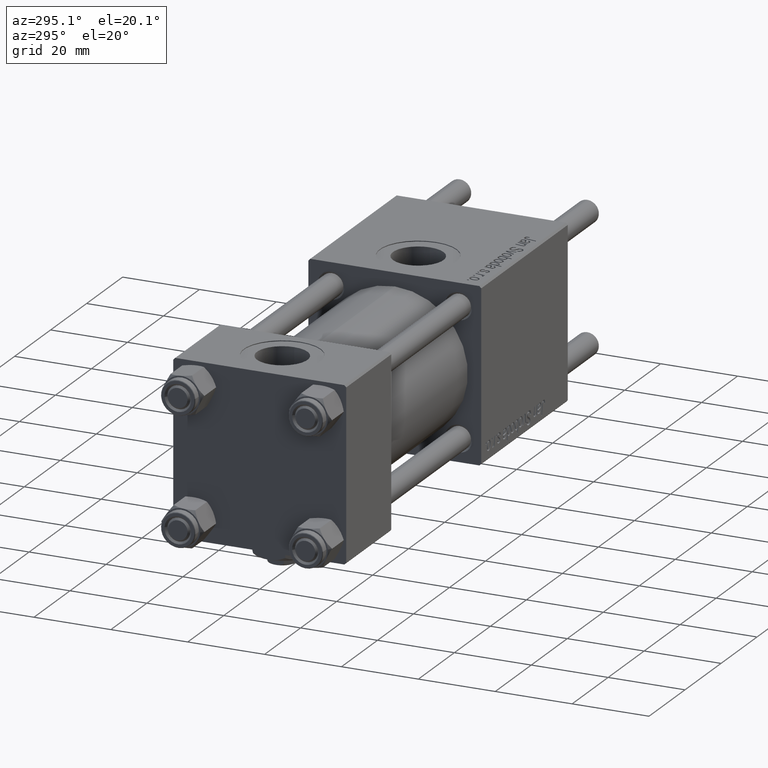
[diagram: clean part render]
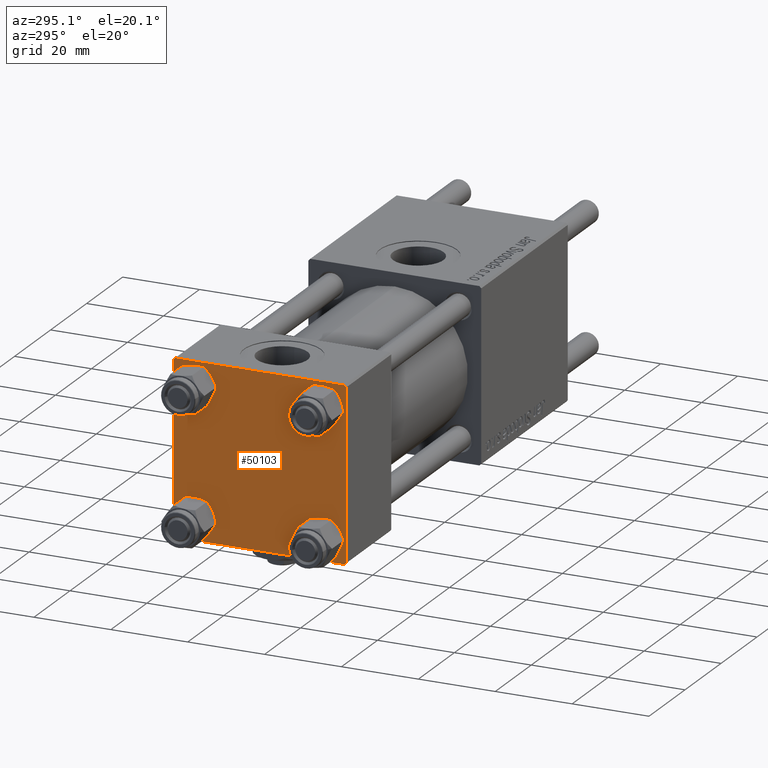
[diagram: same view with one face highlighted and labeled with its STEP entity id]
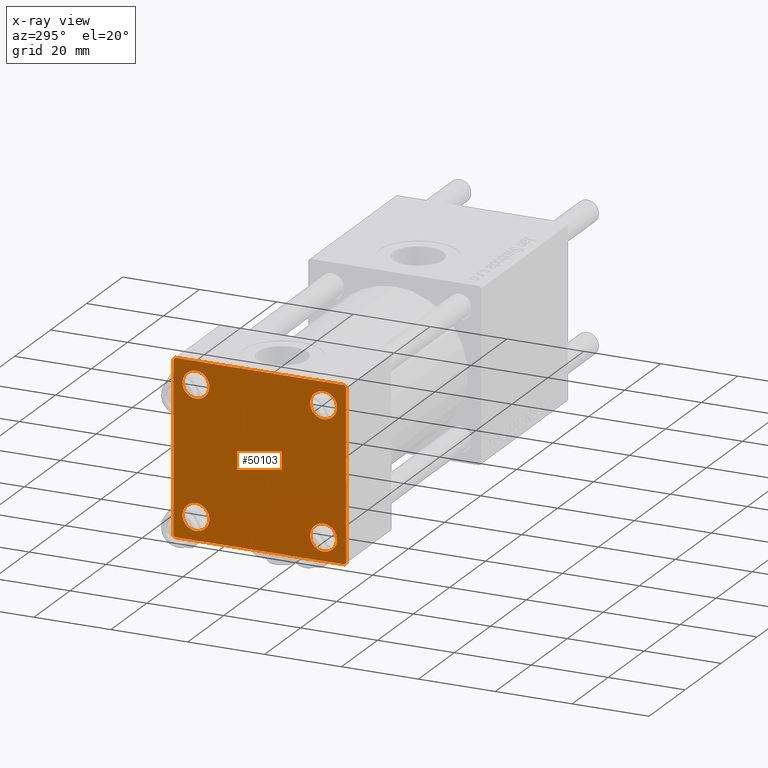
[diagram: x-ray of the same camera — body ghosted, the highlighted face saturated]
A machine part, auxiliary view. The second image highlights one B-rep face of the part: STEP entity #50103.
The next image is the same camera in x-ray: the body ghosted, the highlighted face saturated — about 0% of this face is hidden behind the body in this view.
In plain terms, the highlighted planar face has unit normal (-1, 0, 0).
Its self-contained STEP definition (entity closure, byte-faithful):
#171 = CARTESIAN_POINT ( 'NONE',  ( 0.000000000000000000, 16.59999999999999787, 16.60000000000000497 ) ) ;
#240 = EDGE_CURVE ( 'NONE', #49391, #10464, #55686, .T. ) ;
#549 = DIRECTION ( 'NONE',  ( 1.000000000000000000, -0.000000000000000000, 0.000000000000000000 ) ) ;
#808 = DIRECTION ( 'NONE',  ( 0.000000000000000000, 0.000000000000000000, 1.000000000000000000 ) ) ;
#1203 = FACE_BOUND ( 'NONE', #16793, .T. ) ;
#1598 = DIRECTION ( 'NONE',  ( 0.000000000000000000, -0.7071067811865426878, 0.7071067811865524577 ) ) ;
#2044 = CARTESIAN_POINT ( 'NONE',  ( 0.000000000000000000, 22.50000000000000000, -22.49999999999999645 ) ) ;
#2455 = AXIS2_PLACEMENT_3D ( 'NONE', #58542, #54114, #808 ) ;
#3233 = ORIENTED_EDGE ( 'NONE', *, *, #10492, .T. ) ;
#4667 = EDGE_CURVE ( 'NONE', #33914, #56855, #36293, .T. ) ;
#5054 = VECTOR ( 'NONE', #22146, 1000.000000000000000 ) ;
#5116 = DIRECTION ( 'NONE',  ( 1.000000000000000000, -0.000000000000000000, 0.000000000000000000 ) ) ;
#5233 = VERTEX_POINT ( 'NONE', #48022 ) ;
#5362 = FACE_BOUND ( 'NONE', #29068, .T. ) ;
#6223 = PLANE ( 'NONE',  #53026 ) ;
#6280 = LINE ( 'NONE', #33767, #18502 ) ;
#6327 = EDGE_CURVE ( 'NONE', #54380, #55813, #52940, .T. ) ;
#6615 = CARTESIAN_POINT ( 'NONE',  ( 0.000000000000000000, 16.59999999999999787, 20.10000000000000142 ) ) ;
#7002 = ORIENTED_EDGE ( 'NONE', *, *, #25706, .T. ) ;
#7615 = VECTOR ( 'NONE', #32886, 999.9999999999998863 ) ;
#8708 = CARTESIAN_POINT ( 'NONE',  ( 0.000000000000000000, 22.25000000000014566, -22.24999999999984013 ) ) ;
#8879 = VERTEX_POINT ( 'NONE', #37182 ) ;
#9121 = CARTESIAN_POINT ( 'NONE',  ( 0.000000000000000000, 22.50000000000000000, 22.50000000000000355 ) ) ;
#9818 = FACE_OUTER_BOUND ( 'NONE', #26844, .T. ) ;
#10056 = EDGE_CURVE ( 'NONE', #31711, #54151, #28747, .T. ) ;
#10217 = DIRECTION ( 'NONE',  ( 0.000000000000000000, 0.000000000000000000, 1.000000000000000000 ) ) ;
#10329 = CARTESIAN_POINT ( 'NONE',  ( 0.000000000000000000, -16.59999999999999076, -16.60000000000000853 ) ) ;
#10464 = VERTEX_POINT ( 'NONE', #11790 ) ;
#10492 = EDGE_CURVE ( 'NONE', #56855, #12654, #38704, .T. ) ;
#10502 = CARTESIAN_POINT ( 'NONE',  ( 0.000000000000000000, -16.59999999999999076, 16.60000000000000853 ) ) ;
#10591 = ORIENTED_EDGE ( 'NONE', *, *, #43206, .T. ) ;
#10602 = CARTESIAN_POINT ( 'NONE',  ( 0.000000000000000000, -16.59999999999999076, 13.10000000000001030 ) ) ;
#11014 = CARTESIAN_POINT ( 'NONE',  ( 0.000000000000000000, -16.59999999999999076, 20.10000000000000853 ) ) ;
#11790 = CARTESIAN_POINT ( 'NONE',  ( 0.000000000000000000, -16.59999999999999076, -13.10000000000001030 ) ) ;
#12654 = VERTEX_POINT ( 'NONE', #45727 ) ;
#13414 = CIRCLE ( 'NONE', #22882, 3.499999999999996003 ) ;
#13883 = CARTESIAN_POINT ( 'NONE',  ( 0.000000000000000000, -16.59999999999999076, -16.60000000000000853 ) ) ;
#14381 = DIRECTION ( 'NONE',  ( 1.000000000000000000, -0.000000000000000000, 0.000000000000000000 ) ) ;
#14826 = FACE_BOUND ( 'NONE', #56596, .T. ) ;
#15135 = AXIS2_PLACEMENT_3D ( 'NONE', #171, #14381, #19393 ) ;
#16072 = VECTOR ( 'NONE', #57926, 1000.000000000000114 ) ;
#16247 = CARTESIAN_POINT ( 'NONE',  ( 0.000000000000000000, 22.50000000000000000, 21.99999999999999645 ) ) ;
#16495 = ORIENTED_EDGE ( 'NONE', *, *, #37183, .T. ) ;
#16793 = EDGE_LOOP ( 'NONE', ( #7002, #47350 ) ) ;
#16820 = CARTESIAN_POINT ( 'NONE',  ( 0.000000000000000000, 21.99999999999999289, 22.50000000000000355 ) ) ;
#17615 = AXIS2_PLACEMENT_3D ( 'NONE', #53379, #5116, #44476 ) ;
#18386 = ORIENTED_EDGE ( 'NONE', *, *, #10056, .T. ) ;
#18502 = VECTOR ( 'NONE', #24921, 1000.000000000000000 ) ;
#18771 = EDGE_CURVE ( 'NONE', #33914, #54151, #49948, .T. ) ;
#19293 = VERTEX_POINT ( 'NONE', #6615 ) ;
#19378 = CARTESIAN_POINT ( 'NONE',  ( 0.000000000000000000, -22.25000000000014566, -22.24999999999984013 ) ) ;
#19393 = DIRECTION ( 'NONE',  ( 0.000000000000000000, 0.000000000000000000, 1.000000000000000000 ) ) ;
#20109 = DIRECTION ( 'NONE',  ( 0.000000000000000000, -1.000000000000000000, -2.312964634635742957E-16 ) ) ;
#20958 = CIRCLE ( 'NONE', #42656, 3.499999999999996003 ) ;
#21763 = VECTOR ( 'NONE', #1598, 1000.000000000000000 ) ;
#22146 = DIRECTION ( 'NONE',  ( 0.000000000000000000, -1.000000000000000000, -7.709882115452476934E-17 ) ) ;
#22788 = VECTOR ( 'NONE', #20109, 1000.000000000000000 ) ;
#22882 = AXIS2_PLACEMENT_3D ( 'NONE', #44210, #39773, #27065 ) ;
#23271 = EDGE_CURVE ( 'NONE', #31711, #25058, #6280, .T. ) ;
#23698 = VECTOR ( 'NONE', #29829, 1000.000000000000000 ) ;
#23944 = DIRECTION ( 'NONE',  ( 1.000000000000000000, -0.000000000000000000, 0.000000000000000000 ) ) ;
#24572 = DIRECTION ( 'NONE',  ( -1.000000000000000000, 0.000000000000000000, -0.000000000000000000 ) ) ;
#24921 = DIRECTION ( 'NONE',  ( 0.000000000000000000, 0.000000000000000000, -1.000000000000000000 ) ) ;
#25058 = VERTEX_POINT ( 'NONE', #44168 ) ;
#25159 = CARTESIAN_POINT ( 'NONE',  ( 0.000000000000000000, 16.59999999999999787, 16.60000000000000497 ) ) ;
#25402 = EDGE_CURVE ( 'NONE', #32827, #5233, #56332, .T. ) ;
#25706 = EDGE_CURVE ( 'NONE', #36525, #27616, #34546, .T. ) ;
#25949 = EDGE_CURVE ( 'NONE', #27616, #36525, #43092, .T. ) ;
#26844 = EDGE_LOOP ( 'NONE', ( #3233, #16495, #52380, #56522, #41661, #18386, #45616, #47736 ) ) ;
#26904 = DIRECTION ( 'NONE',  ( 0.000000000000000000, 0.000000000000000000, 1.000000000000000000 ) ) ;
#27065 = DIRECTION ( 'NONE',  ( 0.000000000000000000, 0.000000000000000000, 1.000000000000000000 ) ) ;
#27527 = AXIS2_PLACEMENT_3D ( 'NONE', #13883, #549, #26904 ) ;
#27616 = VERTEX_POINT ( 'NONE', #10602 ) ;
#27863 = CARTESIAN_POINT ( 'NONE',  ( 0.000000000000000000, 0.000000000000000000, 0.000000000000000000 ) ) ;
#28747 = LINE ( 'NONE', #51262, #7615 ) ;
#29068 = EDGE_LOOP ( 'NONE', ( #30133, #45469 ) ) ;
#29829 = DIRECTION ( 'NONE',  ( 0.000000000000000000, 0.000000000000000000, -1.000000000000000000 ) ) ;
#30133 = ORIENTED_EDGE ( 'NONE', *, *, #45062, .T. ) ;
#30407 = ORIENTED_EDGE ( 'NONE', *, *, #46717, .T. ) ;
#31711 = VERTEX_POINT ( 'NONE', #47609 ) ;
#32474 = ORIENTED_EDGE ( 'NONE', *, *, #25402, .T. ) ;
#32827 = VERTEX_POINT ( 'NONE', #44639 ) ;
#32886 = DIRECTION ( 'NONE',  ( -0.000000000000000000, 0.7071067811865525687, 0.7071067811865425767 ) ) ;
#33253 = LINE ( 'NONE', #19378, #21763 ) ;
#33767 = CARTESIAN_POINT ( 'NONE',  ( 0.000000000000000000, -22.50000000000000000, 22.50000000000000000 ) ) ;
#33914 = VERTEX_POINT ( 'NONE', #16820 ) ;
#34546 = CIRCLE ( 'NONE', #54459, 3.499999999999996003 ) ;
#34795 = VECTOR ( 'NONE', #50426, 1000.000000000000000 ) ;
#36074 = CARTESIAN_POINT ( 'NONE',  ( 0.000000000000000000, -21.99999999999997868, 22.50000000000000000 ) ) ;
#36293 = LINE ( 'NONE', #48446, #16072 ) ;
#36525 = VERTEX_POINT ( 'NONE', #11014 ) ;
#37182 = CARTESIAN_POINT ( 'NONE',  ( 0.000000000000000000, 16.59999999999999787, 13.10000000000000675 ) ) ;
#37183 = EDGE_CURVE ( 'NONE', #12654, #54380, #44790, .T. ) ;
#37298 = FACE_BOUND ( 'NONE', #49150, .T. ) ;
#37692 = AXIS2_PLACEMENT_3D ( 'NONE', #10329, #23944, #50593 ) ;
#38704 = LINE ( 'NONE', #56783, #23698 ) ;
#39773 = DIRECTION ( 'NONE',  ( 1.000000000000000000, -0.000000000000000000, 0.000000000000000000 ) ) ;
#40641 = CIRCLE ( 'NONE', #15135, 3.499999999999996003 ) ;
#41013 = ORIENTED_EDGE ( 'NONE', *, *, #46215, .T. ) ;
#41661 = ORIENTED_EDGE ( 'NONE', *, *, #23271, .F. ) ;
#42289 = EDGE_CURVE ( 'NONE', #55813, #25058, #33253, .T. ) ;
#42656 = AXIS2_PLACEMENT_3D ( 'NONE', #25159, #48520, #43780 ) ;
#43092 = CIRCLE ( 'NONE', #17615, 3.499999999999996003 ) ;
#43206 = EDGE_CURVE ( 'NONE', #19293, #8879, #40641, .T. ) ;
#43780 = DIRECTION ( 'NONE',  ( 0.000000000000000000, 0.000000000000000000, 1.000000000000000000 ) ) ;
#44168 = CARTESIAN_POINT ( 'NONE',  ( 0.000000000000000000, -22.50000000000000000, -21.99999999999997158 ) ) ;
#44210 = CARTESIAN_POINT ( 'NONE',  ( 0.000000000000000000, 16.59999999999999787, -16.60000000000000497 ) ) ;
#44476 = DIRECTION ( 'NONE',  ( 0.000000000000000000, 0.000000000000000000, 1.000000000000000000 ) ) ;
#44639 = CARTESIAN_POINT ( 'NONE',  ( 0.000000000000000000, 16.59999999999999787, -13.10000000000000675 ) ) ;
#44790 = LINE ( 'NONE', #8708, #34795 ) ;
#45062 = EDGE_CURVE ( 'NONE', #10464, #49391, #45470, .T. ) ;
#45469 = ORIENTED_EDGE ( 'NONE', *, *, #240, .T. ) ;
#45470 = CIRCLE ( 'NONE', #27527, 3.499999999999996003 ) ;
#45616 = ORIENTED_EDGE ( 'NONE', *, *, #18771, .F. ) ;
#45727 = CARTESIAN_POINT ( 'NONE',  ( 0.000000000000000000, 22.50000000000000000, -21.99999999999996803 ) ) ;
#46215 = EDGE_CURVE ( 'NONE', #5233, #32827, #13414, .T. ) ;
#46717 = EDGE_CURVE ( 'NONE', #8879, #19293, #20958, .T. ) ;
#47350 = ORIENTED_EDGE ( 'NONE', *, *, #25949, .T. ) ;
#47522 = CARTESIAN_POINT ( 'NONE',  ( 0.000000000000000000, 21.99999999999999289, -22.49999999999999645 ) ) ;
#47609 = CARTESIAN_POINT ( 'NONE',  ( 0.000000000000000000, -22.50000000000000000, 22.00000000000000000 ) ) ;
#47736 = ORIENTED_EDGE ( 'NONE', *, *, #4667, .T. ) ;
#48022 = CARTESIAN_POINT ( 'NONE',  ( 0.000000000000000000, 16.59999999999999787, -20.10000000000000142 ) ) ;
#48446 = CARTESIAN_POINT ( 'NONE',  ( 0.000000000000000000, 22.24999999999999645, 22.24999999999999645 ) ) ;
#48520 = DIRECTION ( 'NONE',  ( 1.000000000000000000, -0.000000000000000000, 0.000000000000000000 ) ) ;
#49150 = EDGE_LOOP ( 'NONE', ( #32474, #41013 ) ) ;
#49391 = VERTEX_POINT ( 'NONE', #53767 ) ;
#49948 = LINE ( 'NONE', #9121, #5054 ) ;
#50103 = ADVANCED_FACE ( 'NONE', ( #1203, #5362, #37298, #14826, #9818 ), #6223, .T. ) ;
#50426 = DIRECTION ( 'NONE',  ( -0.000000000000000000, -0.7071067811865426878, -0.7071067811865524577 ) ) ;
#50593 = DIRECTION ( 'NONE',  ( 0.000000000000000000, 0.000000000000000000, 1.000000000000000000 ) ) ;
#50931 = DIRECTION ( 'NONE',  ( -0.000000000000000000, 0.000000000000000000, 1.000000000000000000 ) ) ;
#51262 = CARTESIAN_POINT ( 'NONE',  ( -0.000000000000000000, -22.24999999999984013, 22.25000000000015277 ) ) ;
#51625 = DIRECTION ( 'NONE',  ( 1.000000000000000000, -0.000000000000000000, 0.000000000000000000 ) ) ;
#52380 = ORIENTED_EDGE ( 'NONE', *, *, #6327, .T. ) ;
#52940 = LINE ( 'NONE', #2044, #22788 ) ;
#53026 = AXIS2_PLACEMENT_3D ( 'NONE', #27863, #24572, #50931 ) ;
#53300 = CARTESIAN_POINT ( 'NONE',  ( 0.000000000000000000, -21.99999999999997158, -22.50000000000000711 ) ) ;
#53379 = CARTESIAN_POINT ( 'NONE',  ( 0.000000000000000000, -16.59999999999999076, 16.60000000000000853 ) ) ;
#53767 = CARTESIAN_POINT ( 'NONE',  ( 0.000000000000000000, -16.59999999999999076, -20.10000000000000497 ) ) ;
#54114 = DIRECTION ( 'NONE',  ( 1.000000000000000000, -0.000000000000000000, 0.000000000000000000 ) ) ;
#54151 = VERTEX_POINT ( 'NONE', #36074 ) ;
#54380 = VERTEX_POINT ( 'NONE', #47522 ) ;
#54459 = AXIS2_PLACEMENT_3D ( 'NONE', #10502, #51625, #10217 ) ;
#55686 = CIRCLE ( 'NONE', #37692, 3.499999999999996003 ) ;
#55813 = VERTEX_POINT ( 'NONE', #53300 ) ;
#56332 = CIRCLE ( 'NONE', #2455, 3.499999999999996003 ) ;
#56522 = ORIENTED_EDGE ( 'NONE', *, *, #42289, .T. ) ;
#56596 = EDGE_LOOP ( 'NONE', ( #10591, #30407 ) ) ;
#56783 = CARTESIAN_POINT ( 'NONE',  ( 0.000000000000000000, 22.50000000000000000, 22.50000000000000355 ) ) ;
#56855 = VERTEX_POINT ( 'NONE', #16247 ) ;
#57926 = DIRECTION ( 'NONE',  ( 0.000000000000000000, 0.7071067811865474617, -0.7071067811865474617 ) ) ;
#58542 = CARTESIAN_POINT ( 'NONE',  ( 0.000000000000000000, 16.59999999999999787, -16.60000000000000497 ) ) ;